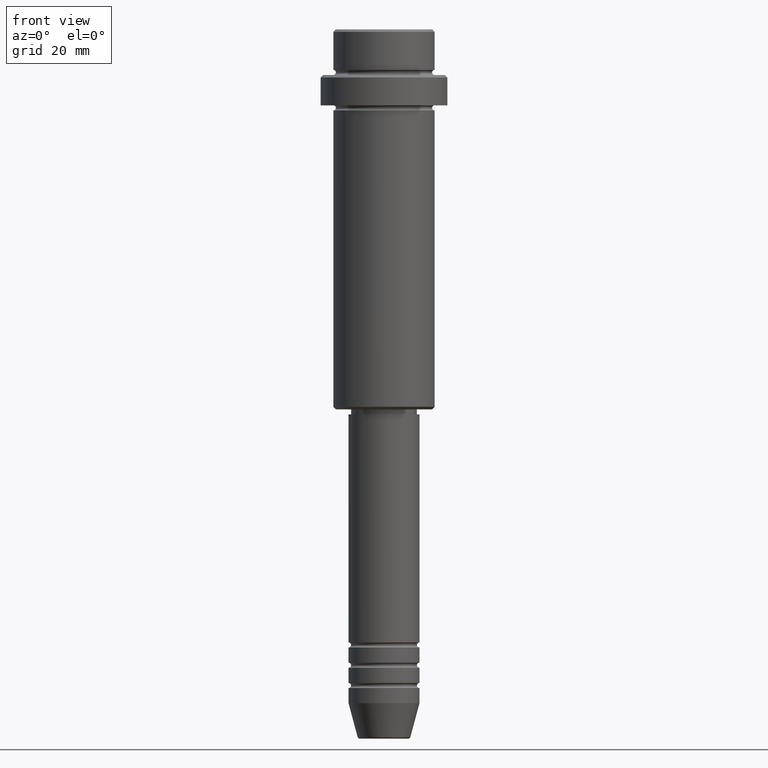
[diagram: clean part render]
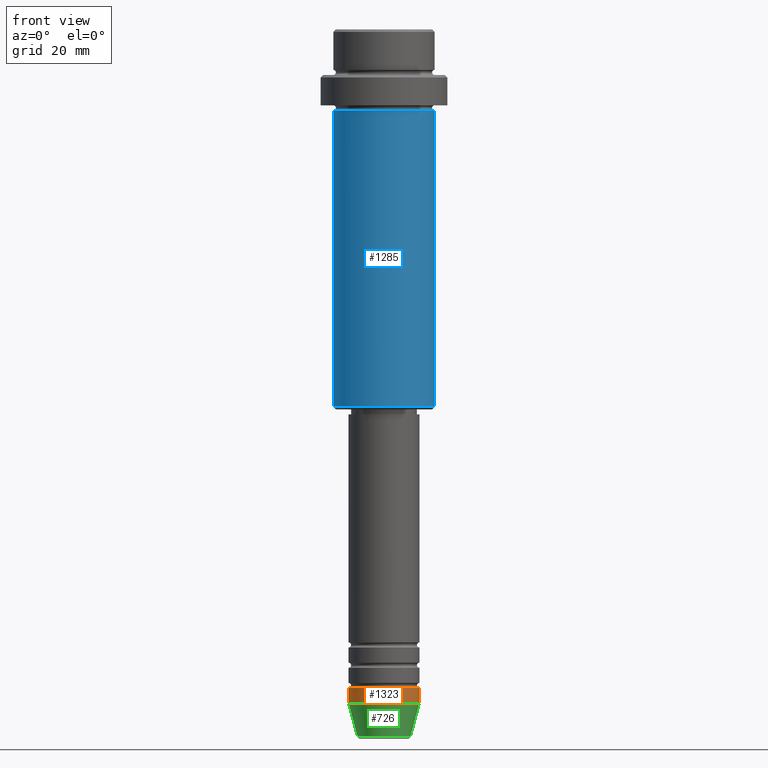
[diagram: same view with three faces highlighted in distinct colors, each labeled with its STEP entity id]
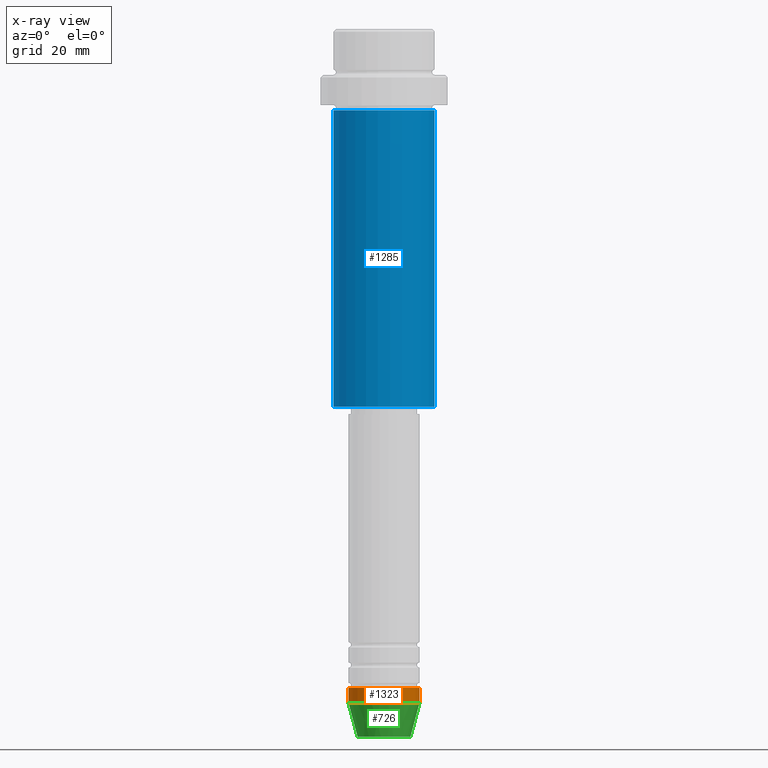
[diagram: x-ray of the same camera — body ghosted, the three highlighted faces saturated]
A machine part, front view with three faces highlighted in distinct colors.
The next image is the same camera in x-ray (body ghosted, the three faces saturated) — at least one of them is partly hidden behind the body in this view.
Their STEP definitions:

[orange] entity #1323 — the highlighted cylindrical surface (edge-blend (fillet) strip) has radius 7 mm, axis along (-0, -0, 1).
#38 = EDGE_CURVE ( 'NONE', #1369, #1088, #825, .T. ) ;
#81 = CIRCLE ( 'NONE', #518, 7.000000000000000000 ) ;
#86 = DIRECTION ( 'NONE',  ( 1.000000000000000000, 0.000000000000000000, 0.000000000000000000 ) ) ;
#118 = CARTESIAN_POINT ( 'NONE',  ( 0.000000000000000000, 0.000000000000000000, -133.0000000000000000 ) ) ;
#122 = EDGE_CURVE ( 'NONE', #305, #682, #81, .T. ) ;
#140 = CARTESIAN_POINT ( 'NONE',  ( -7.000000000000000000, 8.572527594031473190E-16, 0.000000000000000000 ) ) ;
#221 = EDGE_CURVE ( 'NONE', #682, #1088, #1261, .T. ) ;
#242 = AXIS2_PLACEMENT_3D ( 'NONE', #514, #1377, #390 ) ;
#305 = VERTEX_POINT ( 'NONE', #926 ) ;
#336 = DIRECTION ( 'NONE',  ( 1.000000000000000000, 0.000000000000000000, 0.000000000000000000 ) ) ;
#364 = LINE ( 'NONE', #140, #703 ) ;
#390 = DIRECTION ( 'NONE',  ( 1.000000000000000000, 0.000000000000000000, 0.000000000000000000 ) ) ;
#427 = VECTOR ( 'NONE', #1355, 1000.000000000000000 ) ;
#456 = CARTESIAN_POINT ( 'NONE',  ( 7.000000000000000000, 0.000000000000000000, -133.0000000000000000 ) ) ;
#514 = CARTESIAN_POINT ( 'NONE',  ( 0.000000000000000000, 0.000000000000000000, -130.0000000000000000 ) ) ;
#518 = AXIS2_PLACEMENT_3D ( 'NONE', #118, #1002, #336 ) ;
#582 = DIRECTION ( 'NONE',  ( -0.000000000000000000, -0.000000000000000000, 1.000000000000000000 ) ) ;
#590 = ORIENTED_EDGE ( 'NONE', *, *, #122, .T. ) ;
#682 = VERTEX_POINT ( 'NONE', #456 ) ;
#700 = ORIENTED_EDGE ( 'NONE', *, *, #1200, .F. ) ;
#703 = VECTOR ( 'NONE', #582, 1000.000000000000000 ) ;
#710 = CARTESIAN_POINT ( 'NONE',  ( 7.000000000000000000, 0.000000000000000000, 0.000000000000000000 ) ) ;
#825 = CIRCLE ( 'NONE', #242, 7.000000000000000000 ) ;
#862 = DIRECTION ( 'NONE',  ( -0.000000000000000000, -0.000000000000000000, 1.000000000000000000 ) ) ;
#872 = ORIENTED_EDGE ( 'NONE', *, *, #38, .F. ) ;
#926 = CARTESIAN_POINT ( 'NONE',  ( -7.000000000000000000, 8.572527594031473190E-16, -133.0000000000000000 ) ) ;
#927 = EDGE_LOOP ( 'NONE', ( #700, #590, #1262, #872 ) ) ;
#952 = CARTESIAN_POINT ( 'NONE',  ( -7.000000000000000000, 8.572527594031473190E-16, -130.0000000000000000 ) ) ;
#966 = FACE_OUTER_BOUND ( 'NONE', #927, .T. ) ;
#1002 = DIRECTION ( 'NONE',  ( -0.000000000000000000, -0.000000000000000000, 1.000000000000000000 ) ) ;
#1029 = CARTESIAN_POINT ( 'NONE',  ( 7.000000000000000000, 0.000000000000000000, -130.0000000000000000 ) ) ;
#1076 = CARTESIAN_POINT ( 'NONE',  ( 0.000000000000000000, 0.000000000000000000, 0.000000000000000000 ) ) ;
#1088 = VERTEX_POINT ( 'NONE', #1029 ) ;
#1090 = CYLINDRICAL_SURFACE ( 'NONE', #1278, 7.000000000000000000 ) ;
#1200 = EDGE_CURVE ( 'NONE', #305, #1369, #364, .T. ) ;
#1261 = LINE ( 'NONE', #710, #427 ) ;
#1262 = ORIENTED_EDGE ( 'NONE', *, *, #221, .T. ) ;
#1278 = AXIS2_PLACEMENT_3D ( 'NONE', #1076, #862, #86 ) ;
#1323 = ADVANCED_FACE ( 'NONE', ( #966 ), #1090, .T. ) ;
#1355 = DIRECTION ( 'NONE',  ( -0.000000000000000000, -0.000000000000000000, 1.000000000000000000 ) ) ;
#1369 = VERTEX_POINT ( 'NONE', #952 ) ;
#1377 = DIRECTION ( 'NONE',  ( -0.000000000000000000, -0.000000000000000000, 1.000000000000000000 ) ) ;

[blue] entity #1285 — the highlighted cylindrical surface (partial cylindrical patch) has radius 10 mm, axis along (-0, -0, 1).
#10 = EDGE_CURVE ( 'NONE', #1390, #397, #292, .T. ) ;
#21 = DIRECTION ( 'NONE',  ( -1.000000000000000000, 0.000000000000000000, 0.000000000000000000 ) ) ;
#41 = ORIENTED_EDGE ( 'NONE', *, *, #720, .F. ) ;
#75 = DIRECTION ( 'NONE',  ( 1.000000000000000000, 0.000000000000000000, 0.000000000000000000 ) ) ;
#78 = AXIS2_PLACEMENT_3D ( 'NONE', #508, #1403, #75 ) ;
#96 = EDGE_CURVE ( 'NONE', #885, #1390, #871, .T. ) ;
#123 = DIRECTION ( 'NONE',  ( -0.000000000000000000, -0.000000000000000000, 1.000000000000000000 ) ) ;
#150 = AXIS2_PLACEMENT_3D ( 'NONE', #556, #550, #21 ) ;
#161 = CARTESIAN_POINT ( 'NONE',  ( -9.999999999999998224, 1.224646799147353059E-15, 0.000000000000000000 ) ) ;
#240 = AXIS2_PLACEMENT_3D ( 'NONE', #352, #123, #704 ) ;
#292 = LINE ( 'NONE', #1383, #630 ) ;
#352 = CARTESIAN_POINT ( 'NONE',  ( 0.000000000000000000, 0.000000000000000000, -16.00000000000000000 ) ) ;
#371 = LINE ( 'NONE', #161, #540 ) ;
#395 = CARTESIAN_POINT ( 'NONE',  ( 9.999999999999998224, 0.000000000000000000, -16.00000000000000000 ) ) ;
#397 = VERTEX_POINT ( 'NONE', #395 ) ;
#409 = FACE_OUTER_BOUND ( 'NONE', #1216, .T. ) ;
#417 = CARTESIAN_POINT ( 'NONE',  ( -9.999999999999998224, 1.224646799147353059E-15, -74.49999999999998579 ) ) ;
#424 = ORIENTED_EDGE ( 'NONE', *, *, #1138, .F. ) ;
#508 = CARTESIAN_POINT ( 'NONE',  ( 0.000000000000000000, 0.000000000000000000, 0.000000000000000000 ) ) ;
#535 = ORIENTED_EDGE ( 'NONE', *, *, #96, .T. ) ;
#540 = VECTOR ( 'NONE', #1151, 1000.000000000000000 ) ;
#550 = DIRECTION ( 'NONE',  ( -0.000000000000000000, -0.000000000000000000, 1.000000000000000000 ) ) ;
#556 = CARTESIAN_POINT ( 'NONE',  ( 0.000000000000000000, 0.000000000000000000, -74.49999999999998579 ) ) ;
#630 = VECTOR ( 'NONE', #861, 1000.000000000000000 ) ;
#653 = VERTEX_POINT ( 'NONE', #803 ) ;
#704 = DIRECTION ( 'NONE',  ( 1.000000000000000000, 0.000000000000000000, 0.000000000000000000 ) ) ;
#720 = EDGE_CURVE ( 'NONE', #653, #397, #1388, .T. ) ;
#781 = CARTESIAN_POINT ( 'NONE',  ( 9.999999999999998224, 0.000000000000000000, -74.49999999999998579 ) ) ;
#803 = CARTESIAN_POINT ( 'NONE',  ( -9.999999999999998224, 1.224646799147353059E-15, -16.00000000000000000 ) ) ;
#861 = DIRECTION ( 'NONE',  ( -0.000000000000000000, -0.000000000000000000, 1.000000000000000000 ) ) ;
#871 = CIRCLE ( 'NONE', #150, 9.999999999999998224 ) ;
#885 = VERTEX_POINT ( 'NONE', #417 ) ;
#1067 = CYLINDRICAL_SURFACE ( 'NONE', #78, 9.999999999999998224 ) ;
#1138 = EDGE_CURVE ( 'NONE', #885, #653, #371, .T. ) ;
#1151 = DIRECTION ( 'NONE',  ( -0.000000000000000000, -0.000000000000000000, 1.000000000000000000 ) ) ;
#1216 = EDGE_LOOP ( 'NONE', ( #424, #535, #1358, #41 ) ) ;
#1285 = ADVANCED_FACE ( 'NONE', ( #409 ), #1067, .T. ) ;
#1358 = ORIENTED_EDGE ( 'NONE', *, *, #10, .T. ) ;
#1383 = CARTESIAN_POINT ( 'NONE',  ( 9.999999999999998224, 0.000000000000000000, 0.000000000000000000 ) ) ;
#1388 = CIRCLE ( 'NONE', #240, 9.999999999999998224 ) ;
#1390 = VERTEX_POINT ( 'NONE', #781 ) ;
#1403 = DIRECTION ( 'NONE',  ( -0.000000000000000000, -0.000000000000000000, 1.000000000000000000 ) ) ;

[green] entity #726 — the highlighted conical surface has half-angle 15 deg.
#6 = DIRECTION ( 'NONE',  ( 0.2588190451025214056, 0.000000000000000000, 0.9659258262890680902 ) ) ;
#69 = LINE ( 'NONE', #185, #652 ) ;
#81 = CIRCLE ( 'NONE', #518, 7.000000000000000000 ) ;
#110 = CARTESIAN_POINT ( 'NONE',  ( 0.000000000000000000, 0.000000000000000000, -139.6294095225512706 ) ) ;
#118 = CARTESIAN_POINT ( 'NONE',  ( 0.000000000000000000, 0.000000000000000000, -133.0000000000000000 ) ) ;
#122 = EDGE_CURVE ( 'NONE', #305, #682, #81, .T. ) ;
#132 = FACE_OUTER_BOUND ( 'NONE', #287, .T. ) ;
#185 = CARTESIAN_POINT ( 'NONE',  ( -7.000000000000000000, 8.572527594031473190E-16, -133.0000000000000000 ) ) ;
#199 = VERTEX_POINT ( 'NONE', #489 ) ;
#287 = EDGE_LOOP ( 'NONE', ( #1207, #1133, #420, #461 ) ) ;
#305 = VERTEX_POINT ( 'NONE', #926 ) ;
#336 = DIRECTION ( 'NONE',  ( 1.000000000000000000, 0.000000000000000000, 0.000000000000000000 ) ) ;
#420 = ORIENTED_EDGE ( 'NONE', *, *, #523, .T. ) ;
#450 = LINE ( 'NONE', #789, #584 ) ;
#456 = CARTESIAN_POINT ( 'NONE',  ( 7.000000000000000000, 0.000000000000000000, -133.0000000000000000 ) ) ;
#461 = ORIENTED_EDGE ( 'NONE', *, *, #122, .F. ) ;
#486 = CARTESIAN_POINT ( 'NONE',  ( 0.000000000000000000, 0.000000000000000000, -133.0000000000000000 ) ) ;
#489 = CARTESIAN_POINT ( 'NONE',  ( 5.223655072137191269, 0.000000000000000000, -139.6294095225512706 ) ) ;
#518 = AXIS2_PLACEMENT_3D ( 'NONE', #118, #1002, #336 ) ;
#523 = EDGE_CURVE ( 'NONE', #199, #682, #450, .T. ) ;
#584 = VECTOR ( 'NONE', #6, 1000.000000000000000 ) ;
#641 = VERTEX_POINT ( 'NONE', #1351 ) ;
#652 = VECTOR ( 'NONE', #767, 1000.000000000000000 ) ;
#682 = VERTEX_POINT ( 'NONE', #456 ) ;
#697 = DIRECTION ( 'NONE',  ( -0.000000000000000000, -0.000000000000000000, 1.000000000000000000 ) ) ;
#726 = ADVANCED_FACE ( 'NONE', ( #132 ), #917, .T. ) ;
#755 = AXIS2_PLACEMENT_3D ( 'NONE', #110, #1234, #1314 ) ;
#767 = DIRECTION ( 'NONE',  ( -0.2588190451025214056, 3.169619151431772953E-17, 0.9659258262890680902 ) ) ;
#789 = CARTESIAN_POINT ( 'NONE',  ( 7.000000000000000000, 0.000000000000000000, -133.0000000000000000 ) ) ;
#917 = CONICAL_SURFACE ( 'NONE', #1161, 7.000000000000000000, 0.2617993877991501295 ) ;
#926 = CARTESIAN_POINT ( 'NONE',  ( -7.000000000000000000, 8.572527594031473190E-16, -133.0000000000000000 ) ) ;
#1002 = DIRECTION ( 'NONE',  ( -0.000000000000000000, -0.000000000000000000, 1.000000000000000000 ) ) ;
#1044 = EDGE_CURVE ( 'NONE', #641, #199, #1117, .T. ) ;
#1117 = CIRCLE ( 'NONE', #755, 5.223655072137191269 ) ;
#1133 = ORIENTED_EDGE ( 'NONE', *, *, #1044, .T. ) ;
#1161 = AXIS2_PLACEMENT_3D ( 'NONE', #486, #697, #1346 ) ;
#1207 = ORIENTED_EDGE ( 'NONE', *, *, #1267, .F. ) ;
#1234 = DIRECTION ( 'NONE',  ( -0.000000000000000000, -0.000000000000000000, 1.000000000000000000 ) ) ;
#1267 = EDGE_CURVE ( 'NONE', #641, #305, #69, .T. ) ;
#1314 = DIRECTION ( 'NONE',  ( 1.000000000000000000, 0.000000000000000000, 0.000000000000000000 ) ) ;
#1346 = DIRECTION ( 'NONE',  ( 1.000000000000000000, 0.000000000000000000, 0.000000000000000000 ) ) ;
#1351 = CARTESIAN_POINT ( 'NONE',  ( -5.223655072137191269, 7.484830028987061160E-16, -139.6294095225512706 ) ) ;